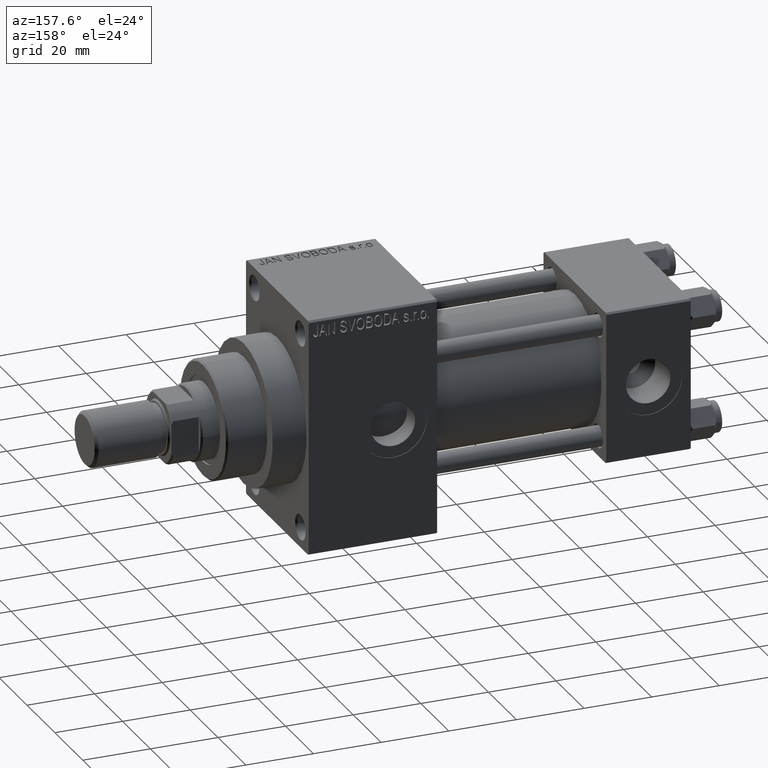
[diagram: clean part render]
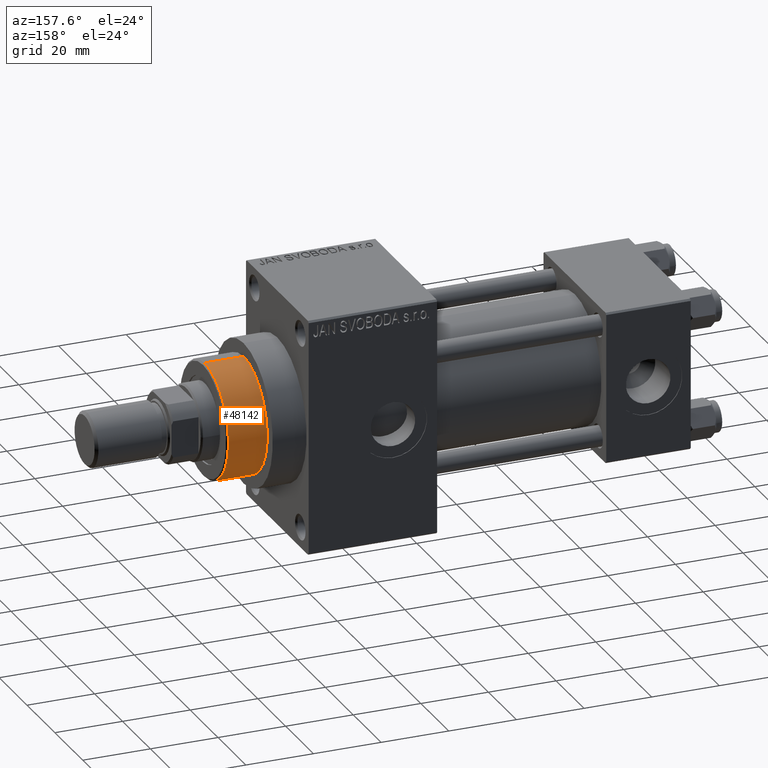
[diagram: same view with one face highlighted and labeled with its STEP entity id]
A machine part, auxiliary view. The second image highlights one B-rep face of the part: STEP entity #48142.
In plain terms, the highlighted cylindrical surface (partial cylindrical patch) has radius 17 mm, axis along (-1, 0, 0).
Its self-contained STEP definition (entity closure, byte-faithful):
#2484 = VECTOR ( 'NONE', #46883, 1000.000000000000000 ) ;
#2556 = AXIS2_PLACEMENT_3D ( 'NONE', #20427, #47219, #32201 ) ;
#3015 = ORIENTED_EDGE ( 'NONE', *, *, #42048, .T. ) ;
#9381 = EDGE_CURVE ( 'NONE', #37103, #24754, #17571, .T. ) ;
#9434 = CYLINDRICAL_SURFACE ( 'NONE', #40383, 17.00000000000000000 ) ;
#11012 = VECTOR ( 'NONE', #20782, 1000.000000000000000 ) ;
#12912 = EDGE_LOOP ( 'NONE', ( #45379, #3015, #32736, #34971 ) ) ;
#14170 = CARTESIAN_POINT ( 'NONE',  ( 0.000000000000000000, 0.000000000000000000, 55.26000000000000512 ) ) ;
#16033 = LINE ( 'NONE', #46840, #11012 ) ;
#17232 = CARTESIAN_POINT ( 'NONE',  ( -17.00000000000000000, 0.000000000000000000, 43.25999999999999801 ) ) ;
#17571 = CIRCLE ( 'NONE', #30382, 17.00000000000000000 ) ;
#17896 = DIRECTION ( 'NONE',  ( 0.000000000000000000, 0.000000000000000000, 1.000000000000000000 ) ) ;
#20337 = CARTESIAN_POINT ( 'NONE',  ( 17.00000000000000000, 2.081899558550500280E-15, 55.26000000000000512 ) ) ;
#20427 = CARTESIAN_POINT ( 'NONE',  ( 0.000000000000000000, 0.000000000000000000, 54.76000000000001222 ) ) ;
#20782 = DIRECTION ( 'NONE',  ( -0.000000000000000000, -0.000000000000000000, -1.000000000000000000 ) ) ;
#24171 = CIRCLE ( 'NONE', #2556, 17.00000000000000000 ) ;
#24754 = VERTEX_POINT ( 'NONE', #45900 ) ;
#25224 = DIRECTION ( 'NONE',  ( -0.000000000000000000, -0.000000000000000000, -1.000000000000000000 ) ) ;
#30382 = AXIS2_PLACEMENT_3D ( 'NONE', #41714, #17896, #33431 ) ;
#31916 = EDGE_CURVE ( 'NONE', #48533, #37103, #16033, .T. ) ;
#32201 = DIRECTION ( 'NONE',  ( 1.000000000000000000, 0.000000000000000000, 0.000000000000000000 ) ) ;
#32736 = ORIENTED_EDGE ( 'NONE', *, *, #31916, .T. ) ;
#33431 = DIRECTION ( 'NONE',  ( 1.000000000000000000, 0.000000000000000000, 0.000000000000000000 ) ) ;
#34408 = CARTESIAN_POINT ( 'NONE',  ( -17.00000000000000000, 0.000000000000000000, 54.76000000000001222 ) ) ;
#34971 = ORIENTED_EDGE ( 'NONE', *, *, #9381, .T. ) ;
#35378 = LINE ( 'NONE', #20337, #2484 ) ;
#36992 = DIRECTION ( 'NONE',  ( -1.000000000000000000, 0.000000000000000000, 0.000000000000000000 ) ) ;
#37103 = VERTEX_POINT ( 'NONE', #17232 ) ;
#40363 = EDGE_CURVE ( 'NONE', #47139, #24754, #35378, .T. ) ;
#40383 = AXIS2_PLACEMENT_3D ( 'NONE', #14170, #25224, #36992 ) ;
#41714 = CARTESIAN_POINT ( 'NONE',  ( 0.000000000000000000, 0.000000000000000000, 43.25999999999999801 ) ) ;
#42048 = EDGE_CURVE ( 'NONE', #47139, #48533, #24171, .T. ) ;
#44744 = FACE_OUTER_BOUND ( 'NONE', #12912, .T. ) ;
#45379 = ORIENTED_EDGE ( 'NONE', *, *, #40363, .F. ) ;
#45793 = CARTESIAN_POINT ( 'NONE',  ( 17.00000000000000000, 2.081899558550500280E-15, 54.76000000000001222 ) ) ;
#45900 = CARTESIAN_POINT ( 'NONE',  ( 17.00000000000000000, 2.081899558550500280E-15, 43.25999999999999801 ) ) ;
#46840 = CARTESIAN_POINT ( 'NONE',  ( -17.00000000000000000, 0.000000000000000000, 55.26000000000000512 ) ) ;
#46883 = DIRECTION ( 'NONE',  ( -0.000000000000000000, -0.000000000000000000, -1.000000000000000000 ) ) ;
#47139 = VERTEX_POINT ( 'NONE', #45793 ) ;
#47219 = DIRECTION ( 'NONE',  ( 0.000000000000000000, 0.000000000000000000, -1.000000000000000000 ) ) ;
#48142 = ADVANCED_FACE ( 'NONE', ( #44744 ), #9434, .T. ) ;
#48533 = VERTEX_POINT ( 'NONE', #34408 ) ;